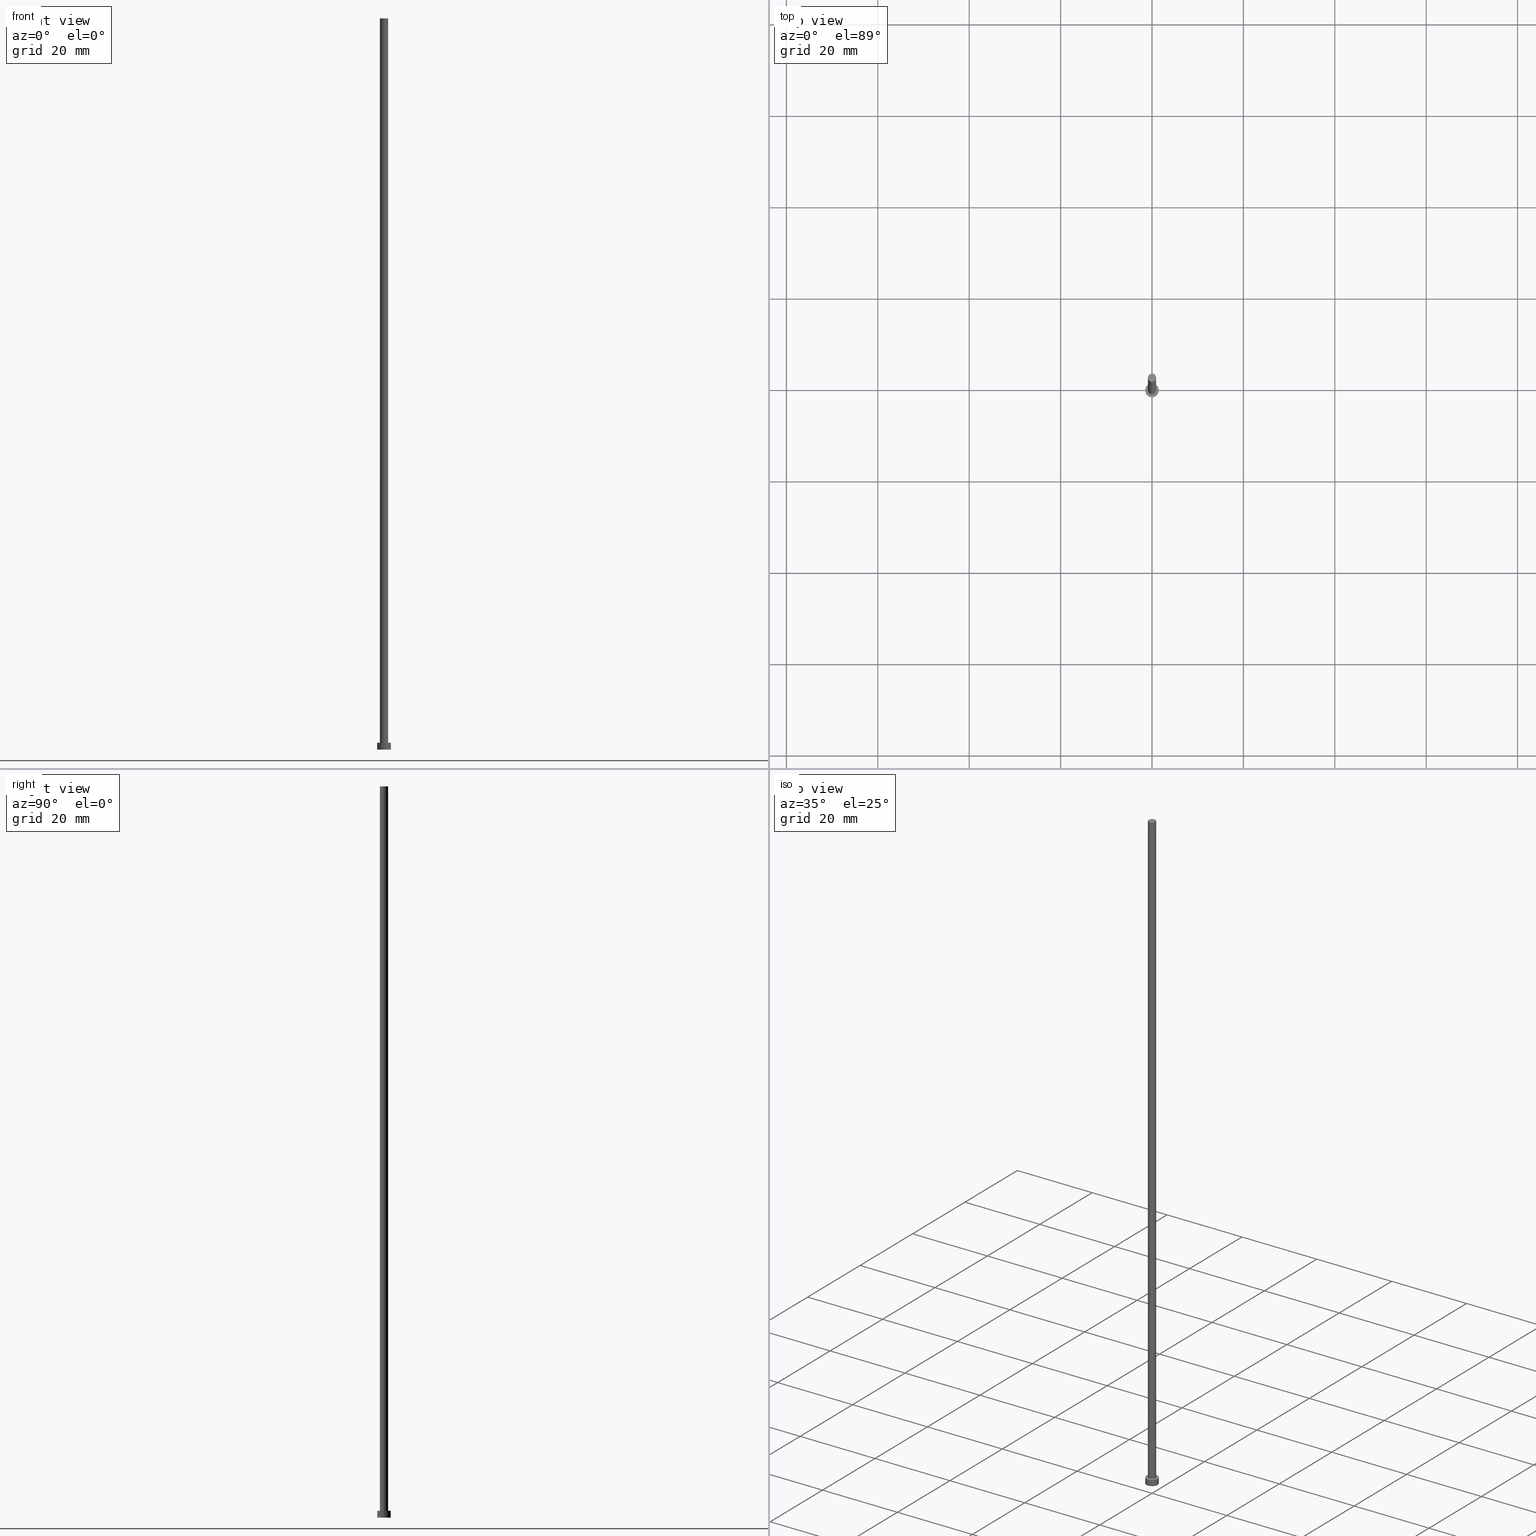
[diagram: canonical four-view strip — front | top / right | iso, engineering-drawing reading convention]
A machine part, canonical four-view strip (front | top / right | iso — engineering-drawing reading convention). The complete STEP part file that produces these views, byte-faithful:
ISO-10303-21;
HEADER;
FILE_DESCRIPTION (( 'STEP AP203' ),
    '1' );
FILE_NAME ('ebe3.STEP',
    '2023-02-13T14:57:06',
    ( '' ),
    ( '' ),
    'SwSTEP 2.0',
    'SolidWorks 2019',
    '' );
FILE_SCHEMA (( 'CONFIG_CONTROL_DESIGN' ));
ENDSEC;

DATA;
#1 = COORDINATED_UNIVERSAL_TIME_OFFSET ( 1, 0, .AHEAD. ) ;
#2 = ADVANCED_FACE ( 'NONE', ( #72 ), #83, .T. ) ;
#3 = CC_DESIGN_PERSON_AND_ORGANIZATION_ASSIGNMENT ( #58, #193, ( #65 ) ) ;
#4 = EDGE_CURVE ( 'NONE', #6, #226, #209, .T. ) ;
#5 = LINE ( 'NONE', #60, #27 ) ;
#6 = VERTEX_POINT ( 'NONE', #85 ) ;
#7 = APPROVAL_STATUS ( 'not_yet_approved' ) ;
#8 = CYLINDRICAL_SURFACE ( 'NONE', #42, 0.9000000000000000222 ) ;
#9 = FACE_OUTER_BOUND ( 'NONE', #222, .T. ) ;
#10 = APPROVAL_PERSON_ORGANIZATION ( #196, #121, #81 ) ;
#11 = ORIENTED_EDGE ( 'NONE', *, *, #82, .T. ) ;
#12 = CARTESIAN_POINT ( 'NONE',  ( 0.000000000000000000, 0.000000000000000000, 160.0000000000000000 ) ) ;
#13 = DIRECTION ( 'NONE',  ( 1.000000000000000000, 0.000000000000000000, 0.000000000000000000 ) ) ;
#14 = VERTEX_POINT ( 'NONE', #125 ) ;
#15 = DIRECTION ( 'NONE',  ( 0.000000000000000000, 0.000000000000000000, 1.000000000000000000 ) ) ;
#16 = AXIS2_PLACEMENT_3D ( 'NONE', #29, #133, #69 ) ;
#17 = SECURITY_CLASSIFICATION_LEVEL ( 'unclassified' ) ;
#18 = DIRECTION ( 'NONE',  ( -1.000000000000000000, 0.000000000000000000, 0.000000000000000000 ) ) ;
#19 = DATE_AND_TIME ( #117, #40 ) ;
#20 = CC_DESIGN_PERSON_AND_ORGANIZATION_ASSIGNMENT ( #118, #55, ( #90 ) ) ;
#21 = DIRECTION ( 'NONE',  ( -0.000000000000000000, -0.000000000000000000, -1.000000000000000000 ) ) ;
#22 = AXIS2_PLACEMENT_3D ( 'NONE', #127, #33, #170 ) ;
#23 = SECURITY_CLASSIFICATION ( '', '', #17 ) ;
#24 = ORIENTED_EDGE ( 'NONE', *, *, #241, .F. ) ;
#25 = CARTESIAN_POINT ( 'NONE',  ( 0.000000000000000000, 0.000000000000000000, 1.500000000000000000 ) ) ;
#26 = DIRECTION ( 'NONE',  ( 0.000000000000000000, 0.000000000000000000, 1.000000000000000000 ) ) ;
#27 = VECTOR ( 'NONE', #242, 1000.000000000000000 ) ;
#28 = ORIENTED_EDGE ( 'NONE', *, *, #201, .T. ) ;
#29 = CARTESIAN_POINT ( 'NONE',  ( 0.000000000000000000, 0.000000000000000000, 0.000000000000000000 ) ) ;
#30 = MECHANICAL_CONTEXT ( 'NONE', #217, 'mechanical' ) ;
#31 = CARTESIAN_POINT ( 'NONE',  ( 0.9000000000000000222, 1.102182119232617788E-16, 1.500000000000000000 ) ) ;
#32 = APPLICATION_PROTOCOL_DEFINITION ( 'international standard', 'config_control_design', 1994, #217 ) ;
#33 = DIRECTION ( 'NONE',  ( -0.000000000000000000, -0.000000000000000000, -1.000000000000000000 ) ) ;
#34 = DATE_AND_TIME ( #150, #41 ) ;
#35 = CARTESIAN_POINT ( 'NONE',  ( -0.9000000000000000222, 0.000000000000000000, 160.0000000000000000 ) ) ;
#36 = PERSON_AND_ORGANIZATION_ROLE ( 'creator' ) ;
#37 = COORDINATED_UNIVERSAL_TIME_OFFSET ( 1, 0, .AHEAD. ) ;
#38 = EDGE_LOOP ( 'NONE', ( #220, #171 ) ) ;
#39 = EDGE_CURVE ( 'NONE', #44, #91, #5, .T. ) ;
#40 = LOCAL_TIME ( 15, 57, 6.000000000000000000, #174 ) ;
#41 = LOCAL_TIME ( 15, 57, 6.000000000000000000, #37 ) ;
#42 = AXIS2_PLACEMENT_3D ( 'NONE', #119, #140, #197 ) ;
#43 = ORIENTED_EDGE ( 'NONE', *, *, #4, .T. ) ;
#44 = VERTEX_POINT ( 'NONE', #218 ) ;
#45 = DIRECTION ( 'NONE',  ( 0.000000000000000000, 0.000000000000000000, 1.000000000000000000 ) ) ;
#46 = ORIENTED_EDGE ( 'NONE', *, *, #236, .T. ) ;
#47 = APPLICATION_PROTOCOL_DEFINITION ( 'international standard', 'config_control_design', 1994, #186 ) ;
#48 = ADVANCED_BREP_SHAPE_REPRESENTATION ( 'ebe3', ( #160, #16 ), #189 ) ;
#49 = FACE_OUTER_BOUND ( 'NONE', #50, .T. ) ;
#50 = EDGE_LOOP ( 'NONE', ( #246, #66, #232, #86 ) ) ;
#51 = DIRECTION ( 'NONE',  ( 0.000000000000000000, 0.000000000000000000, 1.000000000000000000 ) ) ;
#52 = FACE_OUTER_BOUND ( 'NONE', #144, .T. ) ;
#53 =( LENGTH_UNIT ( ) NAMED_UNIT ( * ) SI_UNIT ( .MILLI., .METRE. ) );
#54 = CARTESIAN_POINT ( 'NONE',  ( 0.000000000000000000, 0.000000000000000000, 1.500000000000000000 ) ) ;
#55 = PERSON_AND_ORGANIZATION_ROLE ( 'design_supplier' ) ;
#56 = CIRCLE ( 'NONE', #214, 0.9000000000000000222 ) ;
#57 = DIRECTION ( 'NONE',  ( -0.000000000000000000, -0.000000000000000000, -1.000000000000000000 ) ) ;
#58 = PERSON_AND_ORGANIZATION ( #200, #103 ) ;
#59 = DIRECTION ( 'NONE',  ( -1.000000000000000000, 0.000000000000000000, 0.000000000000000000 ) ) ;
#60 = CARTESIAN_POINT ( 'NONE',  ( -1.500000000000000222, 0.000000000000000000, 1.500000000000000000 ) ) ;
#61 = CC_DESIGN_APPROVAL ( #141, ( #65 ) ) ;
#62 = PRODUCT_DEFINITION_SHAPE ( 'NONE', 'NONE',  #65 ) ;
#63 = DIRECTION ( 'NONE',  ( 1.000000000000000000, 0.000000000000000000, 0.000000000000000000 ) ) ;
#64 = EDGE_LOOP ( 'NONE', ( #161, #43, #77, #137 ) ) ;
#65 = PRODUCT_DEFINITION ( 'NEZN�M�', '', #90, #149 ) ;
#66 = ORIENTED_EDGE ( 'NONE', *, *, #252, .F. ) ;
#67 = FACE_OUTER_BOUND ( 'NONE', #205, .T. ) ;
#68 = ORIENTED_EDGE ( 'NONE', *, *, #241, .T. ) ;
#69 = DIRECTION ( 'NONE',  ( 1.000000000000000000, 0.000000000000000000, 0.000000000000000000 ) ) ;
#70 = LINE ( 'NONE', #162, #240 ) ;
#71 = PLANE ( 'NONE',  #237 ) ;
#72 = FACE_OUTER_BOUND ( 'NONE', #159, .T. ) ;
#73 = EDGE_CURVE ( 'NONE', #14, #44, #176, .T. ) ;
#74 = APPROVAL_ROLE ( '' ) ;
#75 = DIRECTION ( 'NONE',  ( 0.000000000000000000, 0.000000000000000000, 1.000000000000000000 ) ) ;
#76 = APPROVAL_STATUS ( 'not_yet_approved' ) ;
#77 = ORIENTED_EDGE ( 'NONE', *, *, #120, .T. ) ;
#78 = ADVANCED_FACE ( 'NONE', ( #184 ), #8, .T. ) ;
#79 = APPROVAL_PERSON_ORGANIZATION ( #169, #141, #74 ) ;
#80 = AXIS2_PLACEMENT_3D ( 'NONE', #228, #51, #132 ) ;
#81 = APPROVAL_ROLE ( '' ) ;
#82 = EDGE_CURVE ( 'NONE', #104, #91, #192, .T. ) ;
#83 = CYLINDRICAL_SURFACE ( 'NONE', #239, 1.500000000000000222 ) ;
#84 = CIRCLE ( 'NONE', #114, 0.9000000000000000222 ) ;
#85 = CARTESIAN_POINT ( 'NONE',  ( 0.9000000000000000222, 1.102182119232617788E-16, 160.0000000000000000 ) ) ;
#86 = ORIENTED_EDGE ( 'NONE', *, *, #208, .T. ) ;
#87 = VECTOR ( 'NONE', #221, 1000.000000000000000 ) ;
#88 = AXIS2_PLACEMENT_3D ( 'NONE', #253, #75, #231 ) ;
#89 = DIRECTION ( 'NONE',  ( 0.000000000000000000, 0.000000000000000000, 1.000000000000000000 ) ) ;
#90 = PRODUCT_DEFINITION_FORMATION_WITH_SPECIFIED_SOURCE ( 'LIBOVOLN�', '', #143, .NOT_KNOWN. ) ;
#91 = VERTEX_POINT ( 'NONE', #250 ) ;
#92 = CYLINDRICAL_SURFACE ( 'NONE', #163, 1.500000000000000222 ) ;
#93 = CARTESIAN_POINT ( 'NONE',  ( 1.500000000000000222, 1.836970198721030181E-16, 0.000000000000000000 ) ) ;
#94 = AXIS2_PLACEMENT_3D ( 'NONE', #25, #105, #63 ) ;
#95 = DIRECTION ( 'NONE',  ( 1.000000000000000000, 0.000000000000000000, -0.000000000000000000 ) ) ;
#96 = EDGE_CURVE ( 'NONE', #128, #226, #84, .T. ) ;
#97 = CALENDAR_DATE ( 2023, 13, 2 ) ;
#98 = DATE_AND_TIME ( #238, #111 ) ;
#99 = ADVANCED_FACE ( 'NONE', ( #67 ), #207, .T. ) ;
#100 = APPROVAL_DATE_TIME ( #34, #121 ) ;
#101 = CIRCLE ( 'NONE', #223, 0.9000000000000000222 ) ;
#102 = UNCERTAINTY_MEASURE_WITH_UNIT (LENGTH_MEASURE( 1.000000000000000082E-05 ), #53, 'distance_accuracy_value', 'NONE');
#103 = ORGANIZATION ( 'NEUR�EN�', 'NEUR�EN�', '' ) ;
#104 = VERTEX_POINT ( 'NONE', #93 ) ;
#105 = DIRECTION ( 'NONE',  ( 0.000000000000000000, 0.000000000000000000, 1.000000000000000000 ) ) ;
#106 =( NAMED_UNIT ( * ) SI_UNIT ( $, .STERADIAN. ) SOLID_ANGLE_UNIT ( ) );
#107 = PLANE ( 'NONE',  #166 ) ;
#108 = ORIENTED_EDGE ( 'NONE', *, *, #252, .T. ) ;
#109 = VECTOR ( 'NONE', #21, 1000.000000000000000 ) ;
#110 = DIRECTION ( 'NONE',  ( 0.000000000000000000, 0.000000000000000000, 1.000000000000000000 ) ) ;
#111 = LOCAL_TIME ( 15, 57, 6.000000000000000000, #1 ) ;
#112 =( NAMED_UNIT ( * ) PLANE_ANGLE_UNIT ( ) SI_UNIT ( $, .RADIAN. ) );
#113 = CARTESIAN_POINT ( 'NONE',  ( 0.000000000000000000, 0.000000000000000000, 0.000000000000000000 ) ) ;
#114 = AXIS2_PLACEMENT_3D ( 'NONE', #129, #204, #167 ) ;
#115 = PERSON_AND_ORGANIZATION ( #200, #103 ) ;
#116 = LOCAL_TIME ( 15, 57, 6.000000000000000000, #138 ) ;
#117 = CALENDAR_DATE ( 2023, 13, 2 ) ;
#118 = PERSON_AND_ORGANIZATION ( #200, #103 ) ;
#119 = CARTESIAN_POINT ( 'NONE',  ( 0.000000000000000000, 0.000000000000000000, 160.0000000000000000 ) ) ;
#120 = EDGE_CURVE ( 'NONE', #226, #128, #101, .T. ) ;
#121 = APPROVAL ( #76, 'NEUR�EN�' ) ;
#122 = CIRCLE ( 'NONE', #199, 1.500000000000000222 ) ;
#123 = ADVANCED_FACE ( 'NONE', ( #229, #52 ), #190, .T. ) ;
#124 = CIRCLE ( 'NONE', #88, 0.9000000000000000222 ) ;
#125 = CARTESIAN_POINT ( 'NONE',  ( 1.500000000000000222, 1.836970198721030181E-16, 1.500000000000000000 ) ) ;
#126 = EDGE_LOOP ( 'NONE', ( #182, #181 ) ) ;
#127 = CARTESIAN_POINT ( 'NONE',  ( 0.000000000000000000, 0.000000000000000000, 160.0000000000000000 ) ) ;
#128 = VERTEX_POINT ( 'NONE', #145 ) ;
#129 = CARTESIAN_POINT ( 'NONE',  ( 0.000000000000000000, 0.000000000000000000, 1.500000000000000000 ) ) ;
#130 = ADVANCED_FACE ( 'NONE', ( #194 ), #107, .F. ) ;
#131 = DATE_AND_TIME ( #249, #245 ) ;
#132 = DIRECTION ( 'NONE',  ( 1.000000000000000000, 0.000000000000000000, 0.000000000000000000 ) ) ;
#133 = DIRECTION ( 'NONE',  ( 0.000000000000000000, 0.000000000000000000, 1.000000000000000000 ) ) ;
#134 = DIRECTION ( 'NONE',  ( -0.000000000000000000, -0.000000000000000000, -1.000000000000000000 ) ) ;
#135 = CARTESIAN_POINT ( 'NONE',  ( -0.9000000000000000222, 0.000000000000000000, 160.0000000000000000 ) ) ;
#136 = ADVANCED_FACE ( 'NONE', ( #9 ), #71, .T. ) ;
#137 = ORIENTED_EDGE ( 'NONE', *, *, #251, .F. ) ;
#138 = COORDINATED_UNIVERSAL_TIME_OFFSET ( 1, 0, .AHEAD. ) ;
#139 = APPROVAL_ROLE ( '' ) ;
#140 = DIRECTION ( 'NONE',  ( -0.000000000000000000, -0.000000000000000000, -1.000000000000000000 ) ) ;
#141 = APPROVAL ( #7, 'NEUR�EN�' ) ;
#142 = CC_DESIGN_SECURITY_CLASSIFICATION ( #23, ( #90 ) ) ;
#143 = PRODUCT ( 'ebe3', 'ebe3', '', ( #30 ) ) ;
#144 = EDGE_LOOP ( 'NONE', ( #108, #168 ) ) ;
#145 = CARTESIAN_POINT ( 'NONE',  ( -0.9000000000000000222, 0.000000000000000000, 1.500000000000000000 ) ) ;
#146 = CARTESIAN_POINT ( 'NONE',  ( 0.000000000000000000, 0.000000000000000000, 1.500000000000000000 ) ) ;
#147 = CARTESIAN_POINT ( 'NONE',  ( 0.000000000000000000, 0.000000000000000000, 160.0000000000000000 ) ) ;
#148 = COORDINATED_UNIVERSAL_TIME_OFFSET ( 1, 0, .AHEAD. ) ;
#149 = DESIGN_CONTEXT ( 'detailed design', #186, 'design' ) ;
#150 = CALENDAR_DATE ( 2023, 13, 2 ) ;
#151 = PERSON_AND_ORGANIZATION_ROLE ( 'classification_officer' ) ;
#152 = APPROVAL_PERSON_ORGANIZATION ( #213, #215, #139 ) ;
#153 = CC_DESIGN_PERSON_AND_ORGANIZATION_ASSIGNMENT ( #233, #36, ( #90 ) ) ;
#154 = CARTESIAN_POINT ( 'NONE',  ( 0.9000000000000000222, 1.102182119232617788E-16, 160.0000000000000000 ) ) ;
#155 = CARTESIAN_POINT ( 'NONE',  ( 0.000000000000000000, 0.000000000000000000, 1.500000000000000000 ) ) ;
#156 = CC_DESIGN_PERSON_AND_ORGANIZATION_ASSIGNMENT ( #165, #183, ( #143 ) ) ;
#157 = CC_DESIGN_DATE_AND_TIME_ASSIGNMENT ( #177, #195, ( #23 ) ) ;
#158 = DIRECTION ( 'NONE',  ( 0.000000000000000000, 0.000000000000000000, 1.000000000000000000 ) ) ;
#159 = EDGE_LOOP ( 'NONE', ( #164, #28, #11, #202 ) ) ;
#160 = MANIFOLD_SOLID_BREP ( 'P�idat vysunut�m3', #234 ) ;
#161 = ORIENTED_EDGE ( 'NONE', *, *, #236, .F. ) ;
#162 = CARTESIAN_POINT ( 'NONE',  ( 1.500000000000000222, 1.836970198721030181E-16, 1.500000000000000000 ) ) ;
#163 = AXIS2_PLACEMENT_3D ( 'NONE', #54, #172, #18 ) ;
#164 = ORIENTED_EDGE ( 'NONE', *, *, #73, .F. ) ;
#165 = PERSON_AND_ORGANIZATION ( #200, #103 ) ;
#166 = AXIS2_PLACEMENT_3D ( 'NONE', #247, #110, #95 ) ;
#167 = DIRECTION ( 'NONE',  ( 1.000000000000000000, 0.000000000000000000, 0.000000000000000000 ) ) ;
#168 = ORIENTED_EDGE ( 'NONE', *, *, #73, .T. ) ;
#169 = PERSON_AND_ORGANIZATION ( #200, #103 ) ;
#170 = DIRECTION ( 'NONE',  ( -1.000000000000000000, 0.000000000000000000, 0.000000000000000000 ) ) ;
#171 = ORIENTED_EDGE ( 'NONE', *, *, #120, .F. ) ;
#172 = DIRECTION ( 'NONE',  ( -0.000000000000000000, -0.000000000000000000, -1.000000000000000000 ) ) ;
#173 = DIRECTION ( 'NONE',  ( 1.000000000000000000, 0.000000000000000000, 0.000000000000000000 ) ) ;
#174 = COORDINATED_UNIVERSAL_TIME_OFFSET ( 1, 0, .AHEAD. ) ;
#175 = APPROVAL_STATUS ( 'not_yet_approved' ) ;
#176 = CIRCLE ( 'NONE', #94, 1.500000000000000222 ) ;
#177 = DATE_AND_TIME ( #97, #116 ) ;
#178 = ADVANCED_FACE ( 'NONE', ( #49 ), #92, .T. ) ;
#179 = CC_DESIGN_APPROVAL ( #121, ( #90 ) ) ;
#180 = DIRECTION ( 'NONE',  ( 1.000000000000000000, 0.000000000000000000, 0.000000000000000000 ) ) ;
#181 = ORIENTED_EDGE ( 'NONE', *, *, #82, .F. ) ;
#182 = ORIENTED_EDGE ( 'NONE', *, *, #208, .F. ) ;
#183 = PERSON_AND_ORGANIZATION_ROLE ( 'design_owner' ) ;
#184 = FACE_OUTER_BOUND ( 'NONE', #64, .T. ) ;
#185 = CARTESIAN_POINT ( 'NONE',  ( 0.000000000000000000, 0.000000000000000000, 1.500000000000000000 ) ) ;
#186 = APPLICATION_CONTEXT ( 'configuration controlled 3d designs of mechanical parts and assemblies' ) ;
#187 = CC_DESIGN_APPROVAL ( #215, ( #23 ) ) ;
#188 = ORIENTED_EDGE ( 'NONE', *, *, #96, .T. ) ;
#189 =( GEOMETRIC_REPRESENTATION_CONTEXT ( 3 ) GLOBAL_UNCERTAINTY_ASSIGNED_CONTEXT ( ( #102 ) ) GLOBAL_UNIT_ASSIGNED_CONTEXT ( ( #53, #112, #106 ) ) REPRESENTATION_CONTEXT ( 'NONE', 'WORKASPACE' ) );
#190 = PLANE ( 'NONE',  #198 ) ;
#191 = DIRECTION ( 'NONE',  ( 1.000000000000000000, 0.000000000000000000, 0.000000000000000000 ) ) ;
#192 = CIRCLE ( 'NONE', #227, 1.500000000000000222 ) ;
#193 = PERSON_AND_ORGANIZATION_ROLE ( 'creator' ) ;
#194 = FACE_OUTER_BOUND ( 'NONE', #126, .T. ) ;
#195 = DATE_TIME_ROLE ( 'classification_date' ) ;
#196 = PERSON_AND_ORGANIZATION ( #200, #103 ) ;
#197 = DIRECTION ( 'NONE',  ( -1.000000000000000000, 0.000000000000000000, 0.000000000000000000 ) ) ;
#198 = AXIS2_PLACEMENT_3D ( 'NONE', #146, #244, #224 ) ;
#199 = AXIS2_PLACEMENT_3D ( 'NONE', #155, #158, #180 ) ;
#200 = PERSON ( 'NEUR�EN�', 'NEUR�EN�', 'NEUR�EN�', ('NEUR�EN�'), ('NEUR�EN�'), ('NEUR�EN�') ) ;
#201 = EDGE_CURVE ( 'NONE', #14, #104, #70, .T. ) ;
#202 = ORIENTED_EDGE ( 'NONE', *, *, #39, .F. ) ;
#203 = ORIENTED_EDGE ( 'NONE', *, *, #4, .F. ) ;
#204 = DIRECTION ( 'NONE',  ( 0.000000000000000000, 0.000000000000000000, 1.000000000000000000 ) ) ;
#205 = EDGE_LOOP ( 'NONE', ( #203, #24, #243, #188 ) ) ;
#206 = APPROVAL_DATE_TIME ( #131, #141 ) ;
#207 = CYLINDRICAL_SURFACE ( 'NONE', #22, 0.9000000000000000222 ) ;
#208 = EDGE_CURVE ( 'NONE', #91, #104, #219, .T. ) ;
#209 = LINE ( 'NONE', #154, #87 ) ;
#210 = DATE_TIME_ROLE ( 'creation_date' ) ;
#211 = LINE ( 'NONE', #35, #109 ) ;
#212 = CC_DESIGN_DATE_AND_TIME_ASSIGNMENT ( #98, #210, ( #65 ) ) ;
#213 = PERSON_AND_ORGANIZATION ( #200, #103 ) ;
#214 = AXIS2_PLACEMENT_3D ( 'NONE', #147, #15, #173 ) ;
#215 = APPROVAL ( #175, 'NEUR�EN�' ) ;
#216 = APPROVAL_DATE_TIME ( #19, #215 ) ;
#217 = APPLICATION_CONTEXT ( 'configuration controlled 3d designs of mechanical parts and assemblies' ) ;
#218 = CARTESIAN_POINT ( 'NONE',  ( -1.500000000000000222, 0.000000000000000000, 1.500000000000000000 ) ) ;
#219 = CIRCLE ( 'NONE', #80, 1.500000000000000222 ) ;
#220 = ORIENTED_EDGE ( 'NONE', *, *, #96, .F. ) ;
#221 = DIRECTION ( 'NONE',  ( -0.000000000000000000, -0.000000000000000000, -1.000000000000000000 ) ) ;
#222 = EDGE_LOOP ( 'NONE', ( #68, #46 ) ) ;
#223 = AXIS2_PLACEMENT_3D ( 'NONE', #185, #26, #13 ) ;
#224 = DIRECTION ( 'NONE',  ( 1.000000000000000000, 0.000000000000000000, -0.000000000000000000 ) ) ;
#225 = DIRECTION ( 'NONE',  ( 1.000000000000000000, 0.000000000000000000, -0.000000000000000000 ) ) ;
#226 = VERTEX_POINT ( 'NONE', #31 ) ;
#227 = AXIS2_PLACEMENT_3D ( 'NONE', #113, #45, #191 ) ;
#228 = CARTESIAN_POINT ( 'NONE',  ( 0.000000000000000000, 0.000000000000000000, 0.000000000000000000 ) ) ;
#229 = FACE_BOUND ( 'NONE', #38, .T. ) ;
#230 = CARTESIAN_POINT ( 'NONE',  ( 0.000000000000000000, 0.000000000000000000, 1.500000000000000000 ) ) ;
#231 = DIRECTION ( 'NONE',  ( 1.000000000000000000, 0.000000000000000000, 0.000000000000000000 ) ) ;
#232 = ORIENTED_EDGE ( 'NONE', *, *, #39, .T. ) ;
#233 = PERSON_AND_ORGANIZATION ( #200, #103 ) ;
#234 = CLOSED_SHELL ( 'NONE', ( #78, #2, #178, #123, #130, #99, #136 ) ) ;
#235 = PRODUCT_RELATED_PRODUCT_CATEGORY ( 'detail', '', ( #143 ) ) ;
#236 = EDGE_CURVE ( 'NONE', #6, #248, #56, .T. ) ;
#237 = AXIS2_PLACEMENT_3D ( 'NONE', #12, #89, #225 ) ;
#238 = CALENDAR_DATE ( 2023, 13, 2 ) ;
#239 = AXIS2_PLACEMENT_3D ( 'NONE', #230, #57, #59 ) ;
#240 = VECTOR ( 'NONE', #134, 1000.000000000000000 ) ;
#241 = EDGE_CURVE ( 'NONE', #248, #6, #124, .T. ) ;
#242 = DIRECTION ( 'NONE',  ( -0.000000000000000000, -0.000000000000000000, -1.000000000000000000 ) ) ;
#243 = ORIENTED_EDGE ( 'NONE', *, *, #251, .T. ) ;
#244 = DIRECTION ( 'NONE',  ( 0.000000000000000000, 0.000000000000000000, 1.000000000000000000 ) ) ;
#245 = LOCAL_TIME ( 15, 57, 6.000000000000000000, #148 ) ;
#246 = ORIENTED_EDGE ( 'NONE', *, *, #201, .F. ) ;
#247 = CARTESIAN_POINT ( 'NONE',  ( 0.000000000000000000, 0.000000000000000000, 0.000000000000000000 ) ) ;
#248 = VERTEX_POINT ( 'NONE', #135 ) ;
#249 = CALENDAR_DATE ( 2023, 13, 2 ) ;
#250 = CARTESIAN_POINT ( 'NONE',  ( -1.500000000000000222, 0.000000000000000000, 0.000000000000000000 ) ) ;
#251 = EDGE_CURVE ( 'NONE', #248, #128, #211, .T. ) ;
#252 = EDGE_CURVE ( 'NONE', #44, #14, #122, .T. ) ;
#253 = CARTESIAN_POINT ( 'NONE',  ( 0.000000000000000000, 0.000000000000000000, 160.0000000000000000 ) ) ;
#254 = CC_DESIGN_PERSON_AND_ORGANIZATION_ASSIGNMENT ( #115, #151, ( #23 ) ) ;
#255 = SHAPE_DEFINITION_REPRESENTATION ( #62, #48 ) ;
ENDSEC;
END-ISO-10303-21;
